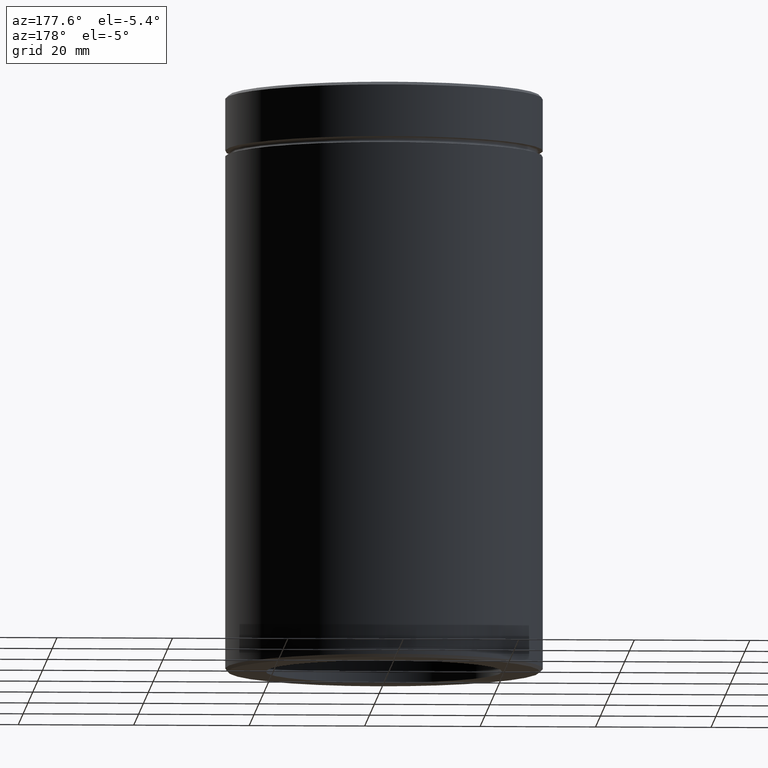
[diagram: clean part render]
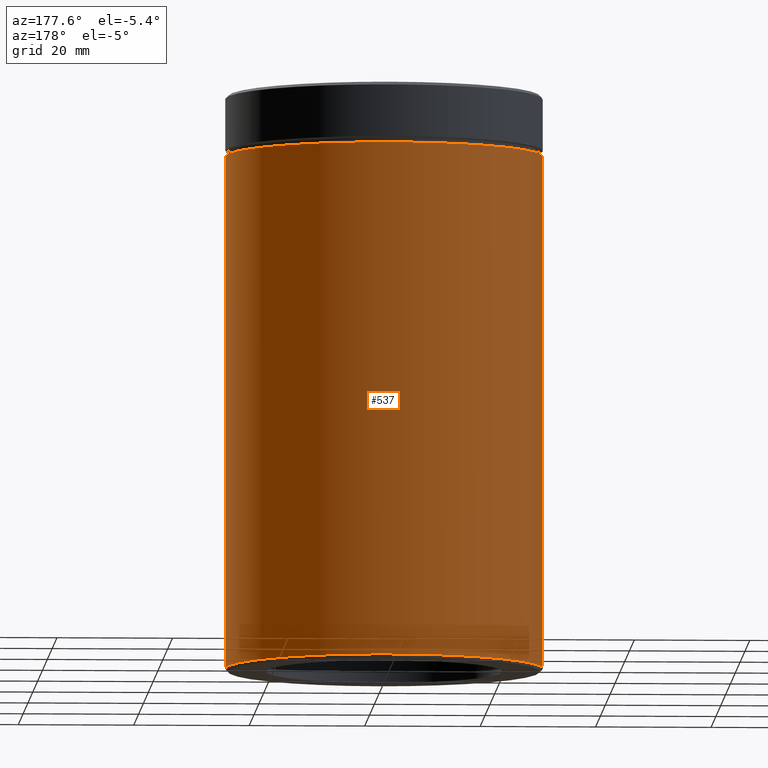
[diagram: same view with one face highlighted and labeled with its STEP entity id]
A machine part, auxiliary view. The second image highlights one B-rep face of the part: STEP entity #537.
In plain terms, the highlighted cylindrical surface (partial cylindrical patch) has radius 27.5 mm, axis along (-0, -0, 1).
Its self-contained STEP definition (entity closure, byte-faithful):
#10 = DIRECTION ( 'NONE',  ( -1.000000000000000000, 0.000000000000000000, 0.000000000000000000 ) ) ;
#46 = VERTEX_POINT ( 'NONE', #194 ) ;
#51 = AXIS2_PLACEMENT_3D ( 'NONE', #282, #277, #10 ) ;
#66 = EDGE_CURVE ( 'NONE', #272, #484, #220, .T. ) ;
#104 = VERTEX_POINT ( 'NONE', #358 ) ;
#117 = CARTESIAN_POINT ( 'NONE',  ( 27.50000000000000000, 0.000000000000000000, -10.50000000000000000 ) ) ;
#136 = LINE ( 'NONE', #529, #261 ) ;
#147 = CYLINDRICAL_SURFACE ( 'NONE', #552, 27.50000000000000000 ) ;
#190 = CARTESIAN_POINT ( 'NONE',  ( 0.000000000000000000, 0.000000000000000000, 0.000000000000000000 ) ) ;
#194 = CARTESIAN_POINT ( 'NONE',  ( -27.50000000000000000, 3.367778697655221307E-15, -99.49999999999995737 ) ) ;
#207 = LINE ( 'NONE', #266, #356 ) ;
#219 = ORIENTED_EDGE ( 'NONE', *, *, #403, .F. ) ;
#220 = CIRCLE ( 'NONE', #233, 27.50000000000000000 ) ;
#231 = EDGE_CURVE ( 'NONE', #104, #46, #349, .T. ) ;
#233 = AXIS2_PLACEMENT_3D ( 'NONE', #462, #335, #332 ) ;
#261 = VECTOR ( 'NONE', #315, 1000.000000000000000 ) ;
#266 = CARTESIAN_POINT ( 'NONE',  ( 27.50000000000000000, 0.000000000000000000, 0.000000000000000000 ) ) ;
#272 = VERTEX_POINT ( 'NONE', #117 ) ;
#276 = DIRECTION ( 'NONE',  ( -0.000000000000000000, -0.000000000000000000, 1.000000000000000000 ) ) ;
#277 = DIRECTION ( 'NONE',  ( -0.000000000000000000, -0.000000000000000000, 1.000000000000000000 ) ) ;
#282 = CARTESIAN_POINT ( 'NONE',  ( 0.000000000000000000, 0.000000000000000000, -99.49999999999995737 ) ) ;
#293 = EDGE_LOOP ( 'NONE', ( #409, #359, #555, #219 ) ) ;
#315 = DIRECTION ( 'NONE',  ( -0.000000000000000000, -0.000000000000000000, 1.000000000000000000 ) ) ;
#332 = DIRECTION ( 'NONE',  ( 1.000000000000000000, 0.000000000000000000, 0.000000000000000000 ) ) ;
#335 = DIRECTION ( 'NONE',  ( -0.000000000000000000, -0.000000000000000000, 1.000000000000000000 ) ) ;
#349 = CIRCLE ( 'NONE', #51, 27.50000000000000000 ) ;
#356 = VECTOR ( 'NONE', #519, 1000.000000000000000 ) ;
#358 = CARTESIAN_POINT ( 'NONE',  ( 27.50000000000000000, 0.000000000000000000, -99.49999999999995737 ) ) ;
#359 = ORIENTED_EDGE ( 'NONE', *, *, #466, .T. ) ;
#392 = CARTESIAN_POINT ( 'NONE',  ( -27.50000000000000000, 3.367778697655221307E-15, -10.50000000000000000 ) ) ;
#403 = EDGE_CURVE ( 'NONE', #104, #272, #207, .T. ) ;
#409 = ORIENTED_EDGE ( 'NONE', *, *, #231, .T. ) ;
#418 = DIRECTION ( 'NONE',  ( 1.000000000000000000, 0.000000000000000000, 0.000000000000000000 ) ) ;
#462 = CARTESIAN_POINT ( 'NONE',  ( 0.000000000000000000, 0.000000000000000000, -10.50000000000000000 ) ) ;
#466 = EDGE_CURVE ( 'NONE', #46, #484, #136, .T. ) ;
#484 = VERTEX_POINT ( 'NONE', #392 ) ;
#502 = FACE_OUTER_BOUND ( 'NONE', #293, .T. ) ;
#519 = DIRECTION ( 'NONE',  ( -0.000000000000000000, -0.000000000000000000, 1.000000000000000000 ) ) ;
#529 = CARTESIAN_POINT ( 'NONE',  ( -27.50000000000000000, 3.367778697655221307E-15, 0.000000000000000000 ) ) ;
#537 = ADVANCED_FACE ( 'NONE', ( #502 ), #147, .T. ) ;
#552 = AXIS2_PLACEMENT_3D ( 'NONE', #190, #276, #418 ) ;
#555 = ORIENTED_EDGE ( 'NONE', *, *, #66, .F. ) ;